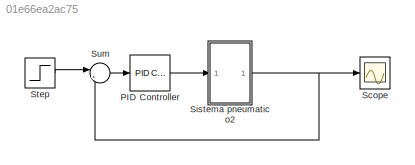
MODEL slx_01e66ea2ac75
KIND model
CONFIG AbsTol = auto
CONFIG EnableMultiTasking = off
CONFIG FixedStep = 1e-3
CONFIG MaxStep = auto
CONFIG MinStep = auto
CONFIG RelTol = 1e-3
CONFIG SampleTimeConstraint = Unconstrained
CONFIG SolverName = ode14x
CONFIG StartTime = 0.0
CONFIG StopTime = 10
BLOCK [Reference] PID Controller  REF=slpidlib/PID Controller
  LibrarySourceBlock = simulink/Continuous/PID Controller
  SourceBlock = slpidlib/PID Controller
  SourceType = PID 1dof
BLOCK [Scope] Scope
  Floating = off
  NumInputPorts = 1
  ScopeSpecificationString = Simulink.scopes.TimeScopeBlockCfg('CurrentConfiguration', extmgr.ConfigurationSet(extmgr.Configuration('Core','General UI',true),extmgr.Configuration('Core','Source UI',true),extmgr.Configuration('Sources','WiredSimulink',true,'DataLogging',true,'DataLoggingVariableName','Y','DataLoggingSaveFormat','Array'),extmgr.Configuration('Visuals','Time Domain',true,'SerializedDisplays',{struct('MinYLimReal...<+1420ch>
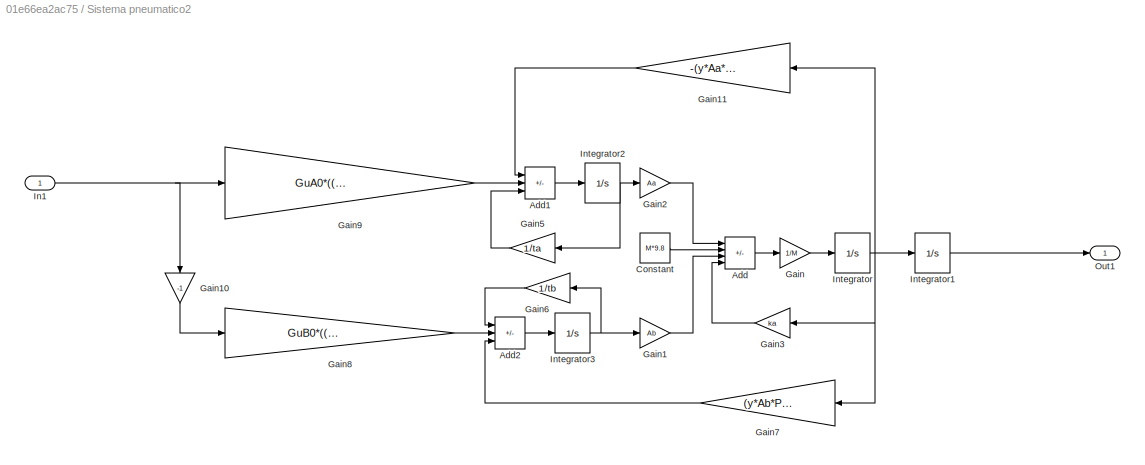
BLOCK [SubSystem] Sistema pneumatico2
BLOCK [Sum] Sistema pneumatico2/Add
  IconShape = rectangular
  Inputs = +---
BLOCK [Sum] Sistema pneumatico2/Add1
  IconShape = rectangular
  Inputs = ++-
BLOCK [Sum] Sistema pneumatico2/Add2
  IconShape = rectangular
  Inputs = -++
BLOCK [Constant] Sistema pneumatico2/Constant
  Value = M*9.8
BLOCK [Gain] Sistema pneumatico2/Gain
  Gain = 1/M
BLOCK [Gain] Sistema pneumatico2/Gain1
  Gain = Ab
BLOCK [Gain] Sistema pneumatico2/Gain10
  Gain = -1
  NameLocation = left
BLOCK [Gain] Sistema pneumatico2/Gain11
  Gain = -(y*Aa*PA0)/VA0
  NameLocation = top
BLOCK [Gain] Sistema pneumatico2/Gain2
  Gain = Aa
BLOCK [Gain] Sistema pneumatico2/Gain3
  Gain = ka
  NameLocation = top
BLOCK [Gain] Sistema pneumatico2/Gain5
  Gain = 1/ta
  NameLocation = top
BLOCK [Gain] Sistema pneumatico2/Gain6
  Gain = 1/tb
  NameLocation = top
BLOCK [Gain] Sistema pneumatico2/Gain7
  Gain = (y*Ab*PB0)/VB0
  NameLocation = top
BLOCK [Gain] Sistema pneumatico2/Gain8
  Gain = GuB0*((y*R*TB0)/(VB0))
BLOCK [Gain] Sistema pneumatico2/Gain9
  Gain = GuA0*((y*R*TA0)/(VA0))
BLOCK [Inport] Sistema pneumatico2/In1
BLOCK [Integrator] Sistema pneumatico2/Integrator
BLOCK [Integrator] Sistema pneumatico2/Integrator1
BLOCK [Integrator] Sistema pneumatico2/Integrator2
BLOCK [Integrator] Sistema pneumatico2/Integrator3
BLOCK [Outport] Sistema pneumatico2/Out1
BLOCK [Step] Step
  SampleTime = 0
BLOCK [Sum] Sum
  Inputs = |+-
LINE PID Controller:1 -> Sistema pneumatico2:1
LINE Sistema pneumatico2/Add1:1 -> Sistema pneumatico2/Integrator2:1
LINE Sistema pneumatico2/Add2:1 -> Sistema pneumatico2/Integrator3:1
LINE Sistema pneumatico2/Add:1 -> Sistema pneumatico2/Gain:1
LINE Sistema pneumatico2/Constant:1 -> Sistema pneumatico2/Add:2
LINE Sistema pneumatico2/Gain10:1 -> Sistema pneumatico2/Gain8:1
LINE Sistema pneumatico2/Gain11:1 -> Sistema pneumatico2/Add1:1
LINE Sistema pneumatico2/Gain1:1 -> Sistema pneumatico2/Add:3
LINE Sistema pneumatico2/Gain2:1 -> Sistema pneumatico2/Add:1
LINE Sistema pneumatico2/Gain3:1 -> Sistema pneumatico2/Add:4
LINE Sistema pneumatico2/Gain5:1 -> Sistema pneumatico2/Add1:3
LINE Sistema pneumatico2/Gain6:1 -> Sistema pneumatico2/Add2:1
LINE Sistema pneumatico2/Gain7:1 -> Sistema pneumatico2/Add2:3
LINE Sistema pneumatico2/Gain8:1 -> Sistema pneumatico2/Add2:2
LINE Sistema pneumatico2/Gain9:1 -> Sistema pneumatico2/Add1:2
LINE Sistema pneumatico2/Gain:1 -> Sistema pneumatico2/Integrator:1
NET Sistema pneumatico2/In1:1 -> Sistema pneumatico2/Gain10:1, Sistema pneumatico2/Gain9:1
LINE Sistema pneumatico2/Integrator1:1 -> Sistema pneumatico2/Out1:1
NET Sistema pneumatico2/Integrator2:1 -> Sistema pneumatico2/Gain2:1, Sistema pneumatico2/Gain5:1
NET Sistema pneumatico2/Integrator3:1 -> Sistema pneumatico2/Gain1:1, Sistema pneumatico2/Gain6:1
NET Sistema pneumatico2/Integrator:1 -> Sistema pneumatico2/Gain11:1, Sistema pneumatico2/Gain3:1, Sistema pneumatico2/Gain7:1, Sistema pneumatico2/Integrator1:1
NET Sistema pneumatico2:1 -> Scope:1, Sum:2
LINE Step:1 -> Sum:1
LINE Sum:1 -> PID Controller:1
note: NET lines group one-source signal fan-out (src -> all destinations, sorted); 1:1 wires keep LINE
